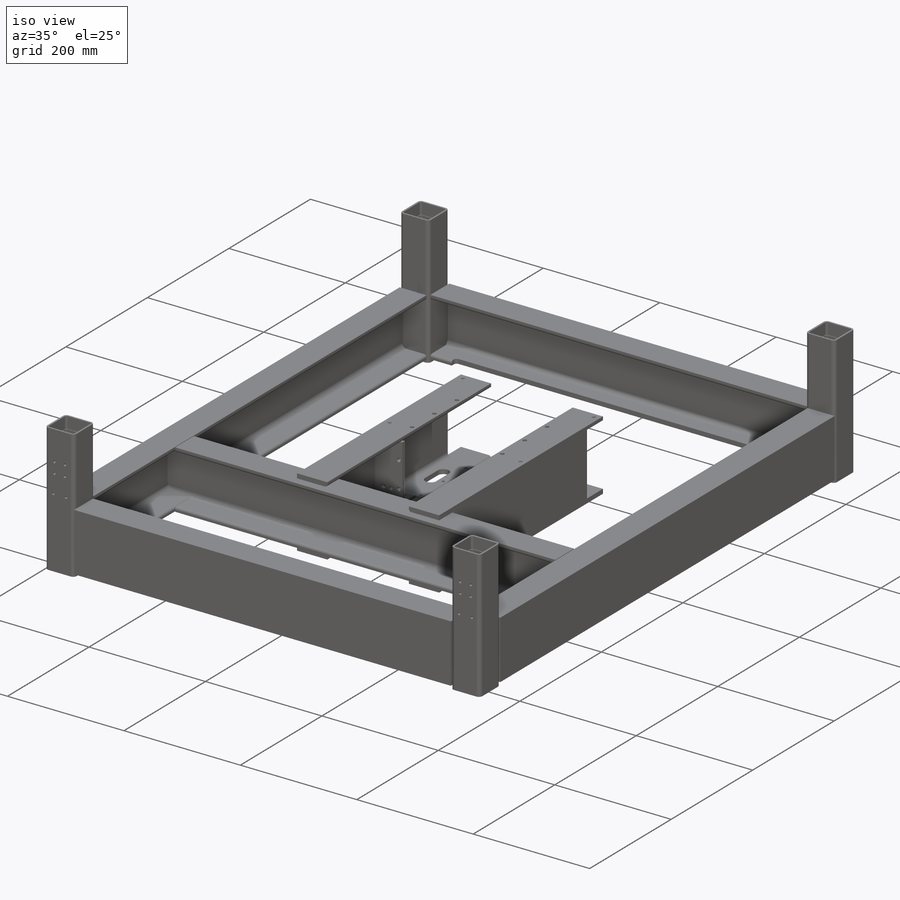
[diagram: iso view]
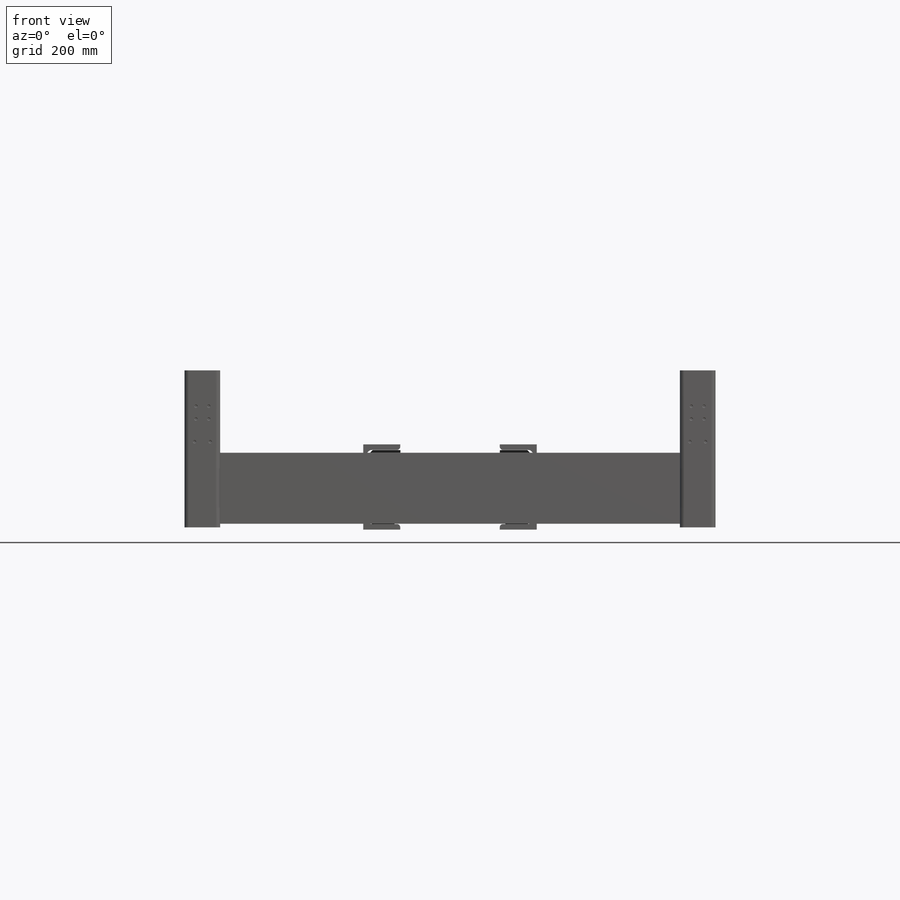
[diagram: front view]
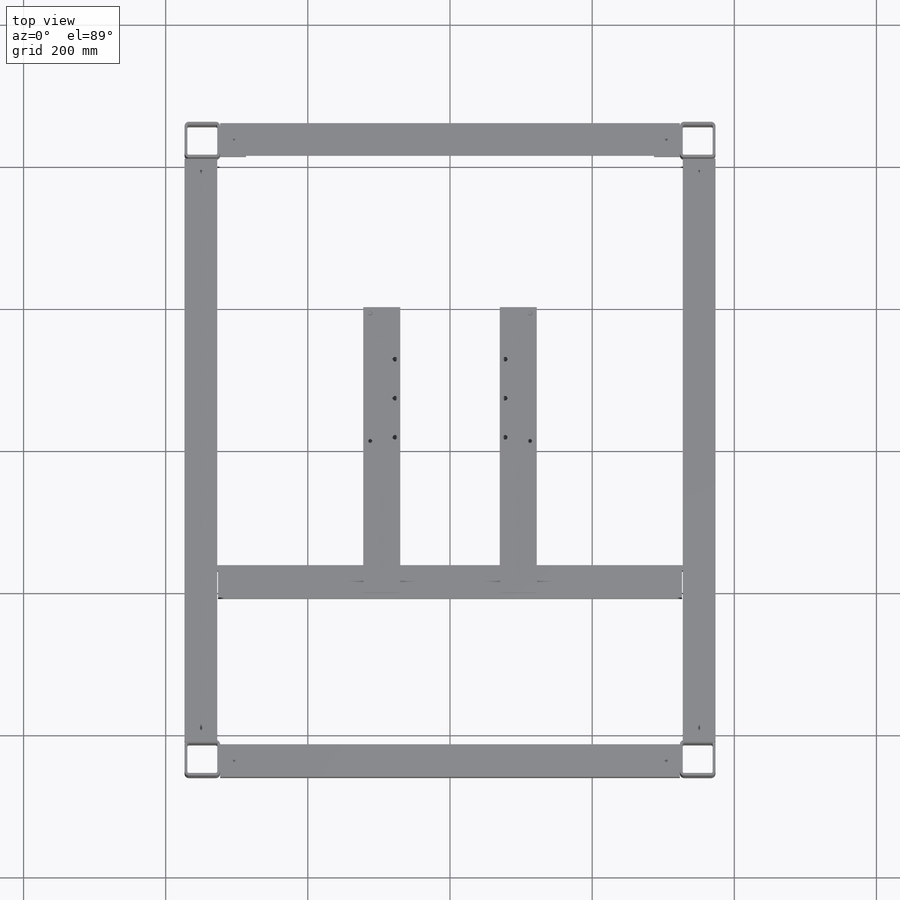
[diagram: top view]
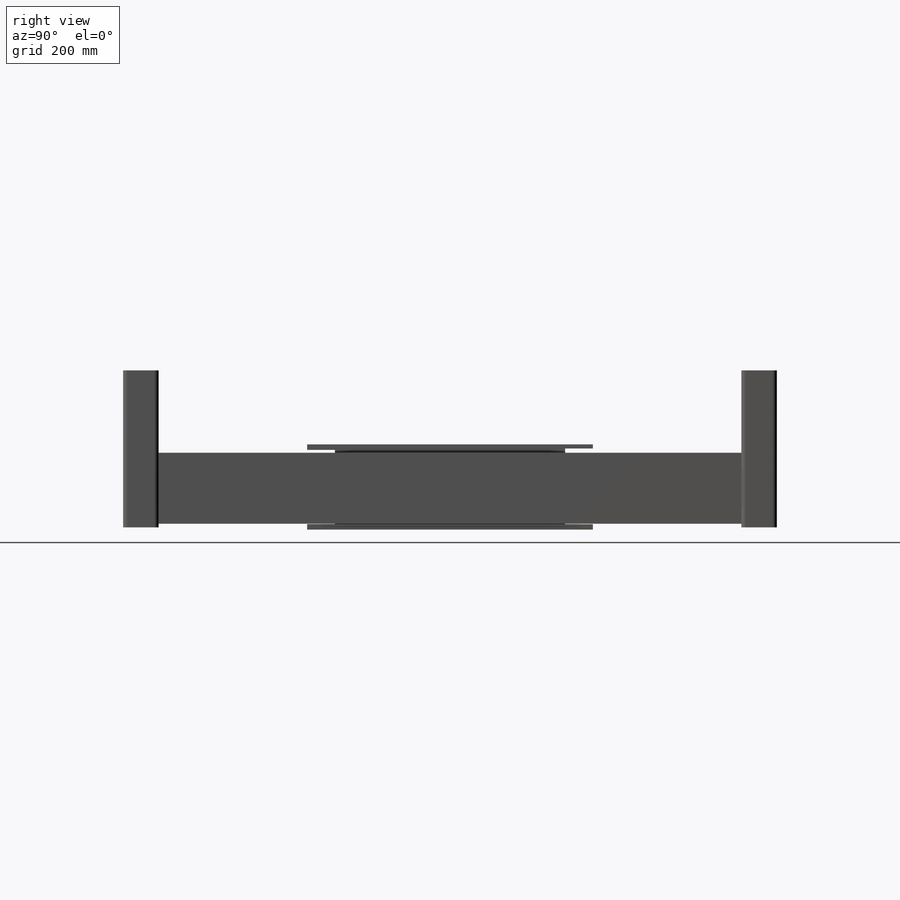
[diagram: right view]
SOLIDWORKS PART (.sldprt)
format: sldprt  version: not decoded by parser v0  size: 3,572,736 bytes
history: native  units: mm
features: sketch x56, thread x38, cut_extrude x14, extrude x7, hole x5, material x2, fillet x2, shell x2, plane x1, delete_body x1 + 33 further entries (+67 scaffold rows collapsed; 5 parser-record rows omitted)
feature tree (233):
  scaffold x67  (default folders/planes/origin — collapsed)
  material  " 09Г2С ГОСТ 4543-71"
  material  "Boundary Conditions Data"
  "Элемент списка вырезов2"
  "Элемент списка вырезов3"
  "Элемент списка вырезов4"
  "Аккумуляторы"
  "Элемент списка вырезов6"
  "Элемент списка вырезов7"
  "Балка правая"
  "Балка левая "
  "Равняющие площадки"
  "Элемент списка вырезов11"
  "Элемент списка вырезов12"
  plane  "Спереди"
  "Сверху"
  "Слева"
  "Начало координат"
  sketch  "Габарит"  dims[D1=750.0mm D2=1100.0mm]
  sketch  "Габарит2"  dims[c1.D1=320.0mm c1.D2=141.6mm c1.D3=~78.83304mm c1.D4=~78.83304mm c2.D3=9.5mm c2.D4=168.9mm c2.D5=90.0mm c2.D6=90.0mm c2.D7=920.0mm c2.D8=1.5mm c2.D9=1.5mm c2.D10=62.5mm c2.D11=105.0mm c2.D12=298.0mm c2.D13=298.0mm c2.D14=324.0mm c2.D15=251.5mm c2.D16=251.5mm c2.D17=244.0mm c2.D18=11.8mm]
  parser-record x5  (decoder bookkeeping rows leaked as tree rows — omitted from the tree; the rows remain in map.json)
  "Плоскость1"
  sketch  "Sketch113"  dims[c1.D1=6.35mm c1.D2=6.35mm c1.D3=6.35mm c1.D4=6.35mm c1.D5=6.35mm c1.D6=6.35mm c1.D7=6.35mm c1.D8=6.35mm c2.D1=6.604mm c2.D2=6.604mm c2.D3=6.604mm c2.D4=6.604mm c3.D1=6.0mm c3.Thickness=4.0mm c3.D4=12.9032mm c3.D5=12.9286mm c3.V_leg=50.0mm c3.H_leg=50.0mm c4.D4=50.3428mm c4.D5=50.8508mm c5.D4=~41.274964mm c5.D5=~41.274964mm]
  "Плоскость2"
  sketch  "Sketch1"  dims[c1.D1=6.35mm c1.D2=6.35mm c1.D3=6.35mm c1.D4=6.35mm c1.D5=6.35mm c1.D6=6.35mm c1.D7=6.35mm c1.D8=6.35mm c2.D1=6.604mm c2.D2=6.604mm c2.D3=6.604mm c2.D4=6.604mm c3.D1=6.0mm c3.Thickness=4.0mm c3.D4=12.9032mm c3.D5=12.9286mm c3.V_leg=50.0mm c3.H_leg=50.0mm c4.D4=50.3428mm c4.D5=50.8508mm c5.D4=~41.274964mm c5.D5=~41.274964mm]
  "Плоскость3"
  sketch  "Sketch114"  dims[c1.D1=6.35mm c1.D2=6.35mm c1.D3=6.35mm c1.D4=6.35mm c1.D5=6.35mm c1.D6=6.35mm c1.D7=6.35mm c1.D8=6.35mm c2.D1=6.604mm c2.D2=6.604mm c2.D3=6.604mm c2.D4=6.604mm c3.D1=6.0mm c3.Thickness=4.0mm c3.D4=12.9032mm c3.D5=12.9286mm c3.V_leg=50.0mm c3.H_leg=50.0mm c4.D4=50.3428mm c4.D5=50.8508mm c5.D4=~41.274964mm c5.D5=~41.274964mm]
  "Плоскость4"
  sketch  "Sketch115"  dims[c1.D1=6.35mm c1.D2=6.35mm c1.D3=6.35mm c1.D4=6.35mm c1.D5=6.35mm c1.D6=6.35mm c1.D7=6.35mm c1.D8=6.35mm c2.D1=6.604mm c2.D2=6.604mm c2.D3=6.604mm c2.D4=6.604mm c3.D1=6.0mm c3.Thickness=4.0mm c3.D4=12.9032mm c3.D5=12.9286mm c3.V_leg=50.0mm c3.H_leg=50.0mm c4.D4=50.3428mm c4.D5=50.8508mm c5.D4=~41.274964mm c5.D5=~41.274964mm]
  "Плоскость5"
  "Плоскость6"
  "Плоскость7"
  "Плоскость11"
  sketch  "Sketch116"  dims[c1.D2=3.175mm c1.R=7.0mm c1.Radius_2=3.175mm c1.r3=3.0mm c1.r1=1.0mm c1.r2=1.0mm c2.r3=1.0mm c2.D1=5.0mm c2._R=7.0mm c2.r=2.5mm c3.r=2.5mm c4.r=2.5mm c4._R=7.0mm c4.D3=2.8mm c4.D4=~5.87639mm c4.R=7.0mm c4._r=2.7mm c5._r=4.0mm c5.V_leg=50.8mm c5.H_leg=50.8mm c5.Thickness=3.175mm c5.S2=3.0mm c5.D3=46.0375mm c6.V_leg=25.4mm c6.H_leg=25.0mm c6.Flat_wid=~0.00508mm c6.D3=6.35mm c6.D2=0.005mm c7.D3=20.0mm c7.H=100.0mm c7.D5=~19.488932mm c7.D6=~5.434439mm c7.D1=2.5mm c7.b=25.0mm c7.Х0=6.7mm c7.S2=22.0mm c8.D1=22.0mm c8.D2=90.0deg c8.S=3.0mm c9.D1=25.0mm c9.b=22.0mm c9.b1=12.0mm c9.Y0=13.2mm c9.S=4.5mm c9.h=100.0mm c10.S=4.5mm c10.B=55.0mm c10.(b-s)/4=12.625mm c10.t=7.0mm c10.D1=19.7258mm c10.D2=~9.065506mm c11.D1=~21.709228mm c12.D1=~24.682381deg c13.D1=~8.916209mm c13.D2=~19.67494mm c14.D1=~19.626905mm c15.D1=10.0deg c15.B=55.0mm c15.(b-s)/4=12.625mm c16.D1=3.8mm c16.D2=~17.739829mm c17.D1=18.0mm c17.D2=12.0mm c17.D3=4.5mm c17.b=55.0mm c17.S=4.4mm c17.(b-S)/4=12.625mm c18.D1=~19.609084mm c18.b=55.0mm c18.(b-S)/2=13.8mm c18.D2=~1.176545mm c19.b=46.0mm c19.h=100.0mm c19.D3=2.2mm c19.D4=2.2mm c20.D3=2.2mm c20.D4=2.2mm c21.D3=2.2mm c21.S=4.5mm c21.Z0=15.3mm c21.t=7.6mm]
  "Плоскость12"
  sketch  "Sketch117"  dims[c1.D2=3.175mm c1.R=7.0mm c1.Radius_2=3.175mm c1.r3=3.0mm c1.r1=1.0mm c1.r2=1.0mm c2.r3=1.0mm c2.D1=5.0mm c2._R=7.0mm c2.r=2.5mm c3.r=2.5mm c4.r=2.5mm c4._R=7.0mm c4.D3=2.8mm c4.D4=~5.87639mm c4.R=7.0mm c4._r=2.7mm c5._r=4.0mm c5.V_leg=50.8mm c5.H_leg=50.8mm c5.Thickness=3.175mm c5.S2=3.0mm c5.D3=46.0375mm c6.V_leg=25.4mm c6.H_leg=25.0mm c6.Flat_wid=~0.00508mm c6.D3=6.35mm c6.D2=0.005mm c7.D3=20.0mm c7.H=100.0mm c7.D5=~19.488932mm c7.D6=~5.434439mm c7.D1=2.5mm c7.b=25.0mm c7.Х0=6.7mm c7.S2=22.0mm c8.D1=22.0mm c8.D2=90.0deg c8.S=3.0mm c9.D1=25.0mm c9.b=22.0mm c9.b1=12.0mm c9.Y0=13.2mm c9.S=4.5mm c9.h=100.0mm c10.S=4.5mm c10.B=55.0mm c10.(b-s)/4=12.625mm c10.t=7.0mm c10.D1=19.7258mm c10.D2=~9.065506mm c11.D1=~21.709228mm c12.D1=~24.682381deg c13.D1=~8.916209mm c13.D2=~19.67494mm c14.D1=~19.626905mm c15.D1=10.0deg c15.B=55.0mm c15.(b-s)/4=12.625mm c16.D1=3.8mm c16.D2=~17.739829mm c17.D1=18.0mm c17.D2=12.0mm c17.D3=4.5mm c17.b=55.0mm c17.S=4.4mm c17.(b-S)/4=12.625mm c18.D1=~19.609084mm c18.b=55.0mm c18.(b-S)/2=13.8mm c18.D2=~1.176545mm c19.b=46.0mm c19.h=100.0mm c19.D3=2.2mm c19.D4=2.2mm c20.D3=2.2mm c20.D4=2.2mm c21.D3=2.2mm c21.S=4.5mm c21.Z0=15.3mm c21.t=7.6mm]
  "Плоскость13"
  sketch  "Sketch118"  dims[c1.D2=3.175mm c1.R=7.0mm c1.Radius_2=3.175mm c1.r3=3.0mm c1.r1=1.0mm c1.r2=1.0mm c2.r3=1.0mm c2.D1=5.0mm c2._R=7.0mm c2.r=2.5mm c3.r=2.5mm c4.r=2.5mm c4._R=7.0mm c4.D3=2.8mm c4.D4=~5.87639mm c4.R=7.0mm c4._r=2.7mm c5._r=4.0mm c5.V_leg=50.8mm c5.H_leg=50.8mm c5.Thickness=3.175mm c5.S2=3.0mm c5.D3=46.0375mm c6.V_leg=25.4mm c6.H_leg=25.0mm c6.Flat_wid=~0.00508mm c6.D3=6.35mm c6.D2=0.005mm c7.D3=20.0mm c7.H=100.0mm c7.D5=~19.488932mm c7.D6=~5.434439mm c7.D1=2.5mm c7.b=25.0mm c7.Х0=6.7mm c7.S2=22.0mm c8.D1=22.0mm c8.D2=90.0deg c8.S=3.0mm c9.D1=25.0mm c9.b=22.0mm c9.b1=12.0mm c9.Y0=13.2mm c9.S=4.5mm c9.h=100.0mm c10.S=4.5mm c10.B=55.0mm c10.(b-s)/4=12.625mm c10.t=7.0mm c10.D1=19.7258mm c10.D2=~9.065506mm c11.D1=~21.709228mm c12.D1=~24.682381deg c13.D1=~8.916209mm c13.D2=~19.67494mm c14.D1=~19.626905mm c15.D1=10.0deg c15.B=55.0mm c15.(b-s)/4=12.625mm c16.D1=3.8mm c16.D2=~17.739829mm c17.D1=18.0mm c17.D2=12.0mm c17.D3=4.5mm c17.b=55.0mm c17.S=4.4mm c17.(b-S)/4=12.625mm c18.D1=~19.609084mm c18.b=55.0mm c18.(b-S)/2=13.8mm c18.D2=~1.176545mm c19.b=46.0mm c19.h=100.0mm c19.D3=2.2mm c19.D4=2.2mm c20.D3=2.2mm c20.D4=2.2mm c21.D3=2.2mm c21.S=4.5mm c21.Z0=15.3mm c21.t=7.6mm]
  "Плоскость14"
  sketch  "Sketch119"  dims[c1.D2=3.175mm c1.R=7.0mm c1.Radius_2=3.175mm c1.r3=3.0mm c1.r1=1.0mm c1.r2=1.0mm c2.r3=1.0mm c2.D1=5.0mm c2._R=7.0mm c2.r=2.5mm c3.r=2.5mm c4.r=2.5mm c4._R=7.0mm c4.D3=2.8mm c4.D4=~5.87639mm c4.R=7.0mm c4._r=2.7mm c5._r=4.0mm c5.V_leg=50.8mm c5.H_leg=50.8mm c5.Thickness=3.175mm c5.S2=3.0mm c5.D3=46.0375mm c6.V_leg=25.4mm c6.H_leg=25.0mm c6.Flat_wid=~0.00508mm c6.D3=6.35mm c6.D2=0.005mm c7.D3=20.0mm c7.H=100.0mm c7.D5=~19.488932mm c7.D6=~5.434439mm c7.D1=2.5mm c7.b=25.0mm c7.Х0=6.7mm c7.S2=22.0mm c8.D1=22.0mm c8.D2=90.0deg c8.S=3.0mm c9.D1=25.0mm c9.b=22.0mm c9.b1=12.0mm c9.Y0=13.2mm c9.S=4.5mm c9.h=100.0mm c10.S=4.5mm c10.B=55.0mm c10.(b-s)/4=12.625mm c10.t=7.0mm c10.D1=19.7258mm c10.D2=~9.065506mm c11.D1=~21.709228mm c12.D1=~24.682381deg c13.D1=~8.916209mm c13.D2=~19.67494mm c14.D1=~19.626905mm c15.D1=10.0deg c15.B=55.0mm c15.(b-s)/4=12.625mm c16.D1=3.8mm c16.D2=~17.739829mm c17.D1=18.0mm c17.D2=12.0mm c17.D3=4.5mm c17.b=55.0mm c17.S=4.4mm c17.(b-S)/4=12.625mm c18.D1=~19.609084mm c18.b=55.0mm c18.(b-S)/2=13.8mm c18.D2=~1.176545mm c19.b=46.0mm c19.h=100.0mm c19.D3=2.2mm c19.D4=2.2mm c20.D3=2.2mm c20.D4=2.2mm c21.D3=2.2mm c21.S=4.5mm c21.Z0=15.3mm c21.t=7.6mm]
  "Плоскость15"
  sketch  "Sketch120"  dims[c1.D2=3.175mm c1.R=7.0mm c1.Radius_2=3.175mm c1.r3=3.0mm c1.r1=1.0mm c1.r2=1.0mm c2.r3=1.0mm c2.D1=5.0mm c2._R=7.0mm c2.r=2.5mm c3.r=2.5mm c4.r=2.5mm c4._R=7.0mm c4.D3=2.8mm c4.D4=~5.87639mm c4.R=7.0mm c4._r=2.7mm c5._r=4.0mm c5.V_leg=50.8mm c5.H_leg=50.8mm c5.Thickness=3.175mm c5.S2=3.0mm c5.D3=46.0375mm c6.V_leg=25.4mm c6.H_leg=25.0mm c6.Flat_wid=~0.00508mm c6.D3=6.35mm c6.D2=0.005mm c7.D3=20.0mm c7.H=100.0mm c7.D5=~19.488932mm c7.D6=~5.434439mm c7.D1=2.5mm c7.b=25.0mm c7.Х0=6.7mm c7.S2=22.0mm c8.D1=22.0mm c8.D2=90.0deg c8.S=3.0mm c9.D1=25.0mm c9.b=22.0mm c9.b1=12.0mm c9.Y0=13.2mm c9.S=4.5mm c9.h=100.0mm c10.S=4.5mm c10.B=55.0mm c10.(b-s)/4=12.625mm c10.t=7.0mm c10.D1=19.7258mm c10.D2=~9.065506mm c11.D1=~21.709228mm c12.D1=~24.682381deg c13.D1=~8.916209mm c13.D2=~19.67494mm c14.D1=~19.626905mm c15.D1=10.0deg c15.B=55.0mm c15.(b-s)/4=12.625mm c16.D1=3.8mm c16.D2=~17.739829mm c17.D1=18.0mm c17.D2=12.0mm c17.D3=4.5mm c17.b=55.0mm c17.S=4.4mm c17.(b-S)/4=12.625mm c18.D1=~19.609084mm c18.b=55.0mm c18.(b-S)/2=13.8mm c18.D2=~1.176545mm c19.b=46.0mm c19.h=100.0mm c19.D3=2.2mm c19.D4=2.2mm c20.D3=2.2mm c20.D4=2.2mm c21.D3=2.2mm c21.S=4.5mm c21.Z0=15.3mm c21.t=7.6mm]
  "Плоскость16"
  sketch  "Sketch121"  dims[c1.D2=3.175mm c1.R=7.0mm c1.Radius_2=3.175mm c1.r3=3.0mm c1.r1=1.0mm c1.r2=1.0mm c2.r3=1.0mm c2.D1=5.0mm c2._R=7.0mm c2.r=2.5mm c3.r=2.5mm c4.r=2.5mm c4._R=7.0mm c4.D3=2.8mm c4.D4=~5.87639mm c4.R=7.0mm c4._r=2.7mm c5._r=4.0mm c5.V_leg=50.8mm c5.H_leg=50.8mm c5.Thickness=3.175mm c5.S2=3.0mm c5.D3=46.0375mm c6.V_leg=25.4mm c6.H_leg=25.0mm c6.Flat_wid=~0.00508mm c6.D3=6.35mm c6.D2=0.005mm c7.D3=20.0mm c7.H=100.0mm c7.D5=~19.488932mm c7.D6=~5.434439mm c7.D1=2.5mm c7.b=25.0mm c7.Х0=6.7mm c7.S2=22.0mm c8.D1=22.0mm c8.D2=90.0deg c8.S=3.0mm c9.D1=25.0mm c9.b=22.0mm c9.b1=12.0mm c9.Y0=13.2mm c9.S=4.5mm c9.h=100.0mm c10.S=4.5mm c10.B=55.0mm c10.(b-s)/4=12.625mm c10.t=7.0mm c10.D1=19.7258mm c10.D2=~9.065506mm c11.D1=~21.709228mm c12.D1=~24.682381deg c13.D1=~8.916209mm c13.D2=~19.67494mm c14.D1=~19.626905mm c15.D1=10.0deg c15.B=55.0mm c15.(b-s)/4=12.625mm c16.D1=3.8mm c16.D2=~17.739829mm c17.D1=18.0mm c17.D2=12.0mm c17.D3=4.5mm c17.b=55.0mm c17.S=4.4mm c17.(b-S)/4=12.625mm c18.D1=~19.609084mm c18.b=55.0mm c18.(b-S)/2=13.8mm c18.D2=~1.176545mm c19.b=46.0mm c19.h=100.0mm c19.D3=2.2mm c19.D4=2.2mm c20.D3=2.2mm c20.D4=2.2mm c21.D3=2.2mm c21.S=4.5mm c21.Z0=15.3mm c21.t=7.6mm]
  "Плоскость17"
  sketch  "Sketch122"  dims[c1.D2=3.175mm c1.R=9.0mm c1.Radius_2=3.175mm c1.r3=3.0mm c1.r1=1.0mm c1.r2=1.0mm c2.r3=1.0mm c2.V_leg=50.8mm c2.H_leg=50.8mm c2.Thickness=3.175mm c2.S2=3.0mm c2.D3=46.0375mm c3.V_leg=25.4mm c3.H_leg=25.0mm c3.Flat_wid=~0.00508mm c3.D3=6.35mm c3.D2=0.005mm c4.D3=20.0mm c4.H=108.0mm c4.D5=~19.488932mm c4.D6=~5.434439mm c4.D1=2.5mm c4.b=70.0mm c4.Х0=22.9mm c4.S2=22.0mm c5.D1=22.0mm c5.D2=90.0deg c5.S=6.0mm]
  "Плоскость18"
  sketch  "Sketch123"  dims[c1.D2=3.175mm c1.R=9.0mm c1.Radius_2=3.175mm c1.r3=3.0mm c1.r1=1.0mm c1.r2=1.0mm c2.r3=1.0mm c2.V_leg=50.8mm c2.H_leg=50.8mm c2.Thickness=3.175mm c2.S2=3.0mm c2.D3=46.0375mm c3.V_leg=25.4mm c3.H_leg=25.0mm c3.Flat_wid=~0.00508mm c3.D3=6.35mm c3.D2=0.005mm c4.D3=20.0mm c4.H=108.0mm c4.D5=~19.488932mm c4.D6=~5.434439mm c4.D1=2.5mm c4.b=70.0mm c4.Х0=22.9mm c4.S2=22.0mm c5.D1=22.0mm c5.D2=90.0deg c5.S=3.0mm c5.S-2=6.0mm]
  sketch  "Эскиз21"  dims[D1=200.0mm D2=200.0mm]
  cut_extrude  "Вытянуть6"  [1 undecoded]
  sketch  "Эскиз10"  dims[c1.D1=1.0mm c1.D2=1.0mm c2.D1=1.0mm]
  cut_extrude  "Вытянуть1"  Depth=1mm
  sketch  "Эскиз11"  dims[D1=0.0mm D2=0.0mm D3=0.0mm D4=0.0mm]
  cut_extrude  "Вытянуть2"  Depth=1mm
  sketch  "Эскиз13"  dims[c1.D1=~22.966545mm c2.D1=45.0deg c2.D2=10.0mm]
  cut_extrude  "Вытянуть3"  [1 undecoded]
  sketch  "Эскиз приводного колеса"  dims[c1.D1=607.0mm c2.D1=40.0deg c2.D2=5.0mm c2.D3=60.0mm c2.D4=250.0mm c2.D5=5.0mm c2.D6=~281.076952mm c2.D7=35.0mm c2.D8=~63.480762mm c2.D9=182.0mm c2.D10=107.0mm c2.D11=~139.747515mm c2.D12=~12.691688mm c2.D13=820.0mm c3.D13=30.0deg c3.D2=5.0mm c3.D12=~14.691688mm c4.D13=800.0mm c5.D13=30.0deg c5.D7=37.0mm]
  delete_body  "Тело-Удалить1"
  sketch  "Эскиз14"  dims[c1.D5=5.0mm c1.D1=~113.48977mm c2.D1=45.0deg c2.D2=217.5mm c3.D1=25.0mm c3.D3=212.0mm c3.D4=212.0mm c4.D1=25.0mm]
  cut_extrude  "Вытянуть4"  [1 undecoded]
  sketch  "Эскиз22"  dims[c1.D1=~50.341959mm c2.D1=45.0deg c2.D2=8.0mm c2.D3=0.5mm c2.D4=0.5mm c2.D5=0.5mm c2.D6=8.0mm c2.D7=0.5mm]
  extrude  "Вытянуть7"  Depth=6mm
  extrude  "Вытянуть8"  [1 undecoded]
  sketch  "Эскиз22<2>"  dims[D1=6.0mm]
  sketch  "Эскиз15"  dims[D1=36.5mm D2=10.0mm]
  cut_extrude  "Вытянуть5"  [1 undecoded]
  fillet  "Скругление1"  Radius=5mm
  fillet  "Скругление2"  Radius=5mm
  sketch  "Эскиз16"  dims[D1=3.0mm D2=3.0mm D3=3.0mm D4=3.0mm]
  cut_extrude  "Вырез под линейные направляющие"  Depth=20mm
  sketch  "Эскиз17"  dims[D1=3.0mm D2=4.0mm D4=2.5mm D6=5.5mm D3=0.5mm D5=1.5mm]
  sketch  "Эскиз18"  dims[D1=350.0mm D2=240.0mm D3=2.5mm D4=2.5mm]
  extrude  "Аккумуляторы тяговые"  Depth=145mm
  shell  "Оболочка1"  Thickness=12mm
  shell  "Оболочка2"  Thickness=12mm
  "Плоскость19"
  sketch  "Sketch124"  dims[c1.D2=3.175mm c1.R=7.0mm c1.Radius_2=3.175mm c1.r3=3.0mm c1.r1=1.0mm c1.r2=1.0mm c2.r3=1.0mm c2.D1=5.0mm c2._R=7.0mm c2.r=2.5mm c3.r=2.5mm c4.r=2.5mm c4._R=7.0mm c4.D3=2.8mm c4.D4=~5.87639mm c4.R=7.5mm c4._r=2.7mm c5._r=4.5mm c5.V_leg=50.8mm c5.H_leg=50.8mm c5.Thickness=3.175mm c5.S2=3.0mm c5.D3=46.0375mm c6.V_leg=25.4mm c6.H_leg=25.0mm c6.Flat_wid=~0.00508mm c6.D3=6.35mm c6.D2=0.005mm c7.D3=20.0mm c7.H=100.0mm c7.D5=~19.488932mm c7.D6=~5.434439mm c7.D1=2.5mm c7.b=25.0mm c7.Х0=6.7mm c7.S2=22.0mm c8.D1=22.0mm c8.D2=90.0deg c8.S=3.0mm c9.D1=25.0mm c9.b=22.0mm c9.b1=12.0mm c9.Y0=13.2mm c9.S=4.5mm c9.h=100.0mm c10.S=4.5mm c10.B=55.0mm c10.(b-s)/4=12.625mm c10.t=7.0mm c10.D1=19.7258mm c10.D2=~9.065506mm c11.D1=~21.709228mm c12.D1=~24.682381deg c13.D1=~8.916209mm c13.D2=~19.67494mm c14.D1=~19.626905mm c15.D1=10.0deg c15.B=55.0mm c15.(b-s)/4=12.625mm c16.D1=3.8mm c16.D2=~17.739829mm c17.D1=18.0mm c17.D2=12.0mm c17.D3=4.5mm c17.b=55.0mm c17.S=4.4mm c17.(b-S)/4=12.625mm c18.D1=~19.609084mm c18.b=55.0mm c18.(b-S)/2=13.8mm c18.D2=~1.176545mm c19.b=52.0mm c19.h=120.0mm c19.D3=2.2mm c19.D4=2.2mm c20.D3=2.2mm c20.D4=2.2mm c21.D3=2.2mm c21.S=4.8mm c21.Z0=16.6mm c21.t=7.8mm]
  "Плоскость20"
  sketch  "Sketch125"  dims[c1.D2=3.175mm c1.R=7.0mm c1.Radius_2=3.175mm c1.r3=3.0mm c1.r1=1.0mm c1.r2=1.0mm c2.r3=1.0mm c2.D1=5.0mm c2._R=7.0mm c2.r=2.5mm c3.r=2.5mm c4.r=2.5mm c4._R=7.0mm c4.D3=2.8mm c4.D4=~5.87639mm c4.R=7.5mm c4._r=2.7mm c5._r=4.5mm c5.V_leg=50.8mm c5.H_leg=50.8mm c5.Thickness=3.175mm c5.S2=3.0mm c5.D3=46.0375mm c6.V_leg=25.4mm c6.H_leg=25.0mm c6.Flat_wid=~0.00508mm c6.D3=6.35mm c6.D2=0.005mm c7.D3=20.0mm c7.H=100.0mm c7.D5=~19.488932mm c7.D6=~5.434439mm c7.D1=2.5mm c7.b=25.0mm c7.Х0=6.7mm c7.S2=22.0mm c8.D1=22.0mm c8.D2=90.0deg c8.S=3.0mm c9.D1=25.0mm c9.b=22.0mm c9.b1=12.0mm c9.Y0=13.2mm c9.S=4.5mm c9.h=100.0mm c10.S=4.5mm c10.B=55.0mm c10.(b-s)/4=12.625mm c10.t=7.0mm c10.D1=19.7258mm c10.D2=~9.065506mm c11.D1=~21.709228mm c12.D1=~24.682381deg c13.D1=~8.916209mm c13.D2=~19.67494mm c14.D1=~19.626905mm c15.D1=10.0deg c15.B=55.0mm c15.(b-s)/4=12.625mm c16.D1=3.8mm c16.D2=~17.739829mm c17.D1=18.0mm c17.D2=12.0mm c17.D3=4.5mm c17.b=55.0mm c17.S=4.4mm c17.(b-S)/4=12.625mm c18.D1=~19.609084mm c18.b=55.0mm c18.(b-S)/2=13.8mm c18.D2=~1.176545mm c19.b=52.0mm c19.h=120.0mm c19.D3=2.2mm c19.D4=2.2mm c20.D3=2.2mm c20.D4=2.2mm c21.D3=2.2mm c21.S=4.8mm c21.Z0=16.6mm c21.t=7.8mm]
  sketch  "Эскиз25"  dims[D1=0.0mm D2=0.0mm]
  extrude  "Вытянуть9"  Depth=7mm
  sketch  "Эскиз26"  dims[c1.D1=0.0mm c1.D2=0.0mm c2.D1=0.0mm c2.D2=0.0mm c2.D3=0.0mm c2.D4=0.0mm]
  extrude  "Вытянуть10"  Depth=39mm
  sketch  "Эскиз27"
  cut_extrude  "Вытянуть11"  Depth=2mm
  sketch  "Эскиз28"  dims[D1=0.0mm]
  cut_extrude  "Вытянуть12"  Depth=0.2mm
  sketch  "Эскиз29"  dims[D3=13.0mm D1=176.0mm D2=24.0mm]
  cut_extrude  "Вытянуть13"  [1 undecoded]
  sketch  "Эскиз30"  dims[D1=32.0mm]
  sketch  "Эскиз32"  dims[D1=3.0mm]
  cut_extrude  "Вытянуть14"  Depth=0.7mm
  sketch  "Эскиз33"  dims[D3=3.0mm D4=3.0mm D5=3.0mm D6=3.0mm D7=3.0mm D8=3.0mm D9=3.0mm D10=3.0mm]
  extrude  "Вытянуть15"  Depth=4mm
  hole  "Зенковка для винта с потайной головкой M121"  [1 undecoded]
  sketch  "Трехмерный эскиз1"
  sketch  "Эскиз34"  dims[hole-wizard template sketch: 54 standard entries collapsed; hole parameters kept: c17.Диаметр сквозного отверстия=13.0mm c17.Глубина сквозного отверстия=120.0mm c17.Диаметр передней зенковки=24.4mm c17.D4=~3.666174mm c17.Угол передней зенковки=90.0deg]
  sketch  "Эскиз35"  dims[c1.D4=9.5mm c1.D1=88.5mm c1.D2=~55.790919mm c2.D2=90.0deg c3.D2=31.0mm c3.D3=19.0mm c3.D4=50.0mm]
  cut_extrude  "Вытянуть16"  [1 undecoded]
  sketch  "Эскиз36"  dims[D11=8.0mm D1=8.0mm D2=103.0mm]
  extrude  "Вытянуть17"  Depth=6mm
  hole  "Отверстие обработанное метчиком M6x1.01"  [1 undecoded]
  sketch  "Эскиз38"  dims[D1=45.0mm D2=6.0mm D3=6.0mm]
  sketch  "Эскиз37"  dims[hole-wizard template sketch: 55 standard entries collapsed; hole parameters kept: c17.Глубина проходного сверла=155.5mm c17.Диаметр задней зенковки=6.5mm c17.D4=~2.963249mm c17.Угол задней зенковки=90.0deg]
  thread  "Отверстие резьбы1"  Diameter=6mm  [1 undecoded]
  thread  "Отверстие резьбы2"  Diameter=6mm  [1 undecoded]
  thread  "Отверстие резьбы3"  Diameter=6mm  [1 undecoded]
  thread  "Отверстие резьбы4"  Diameter=6mm  [1 undecoded]
  sketch  "Эскиз39"  dims[D5=6.5mm D1=7.5mm D2=309.0mm D3=19.5mm D4=110.0mm]
  cut_extrude  "Вытянуть18"  [1 undecoded]
  hole  "Отверстие обработанное метчиком M6x1.02"  [1 undecoded]
  sketch  "Эскиз41"  dims[D1=6.0mm D2=15.0mm D3=110.0mm D4=309.0mm]
  thread  "Отверстие резьбы5"  Diameter=6mm  [1 undecoded]
  thread  "Отверстие резьбы6"  Diameter=6mm  [1 undecoded]
  thread  "Отверстие резьбы7"  Diameter=6mm  [1 undecoded]
  thread  "Отверстие резьбы8"  Diameter=6mm  [1 undecoded]
  sketch  "Эскиз40"  dims[hole-wizard template sketch: 55 standard entries collapsed; hole parameters kept: c17.Глубина проходного сверла=120.0mm c17.Диаметр передней зенковки=6.5mm c17.D4=~3.666174mm c17.Угол передней зенковки=90.0deg]
  thread  "Отверстие резьбы11"  Diameter=6mm  [1 undecoded]
  thread  "Отверстие резьбы12"  Diameter=6mm  [1 undecoded]
  sketch  "Эскиз42"  dims[D1=18.0mm D2=9.0mm D3=14.0mm D4=37.0mm D5=101.5mm D6=9.0mm D7=11.0mm]
  sketch  "Эскиз43"
  hole  "Отверстие обработанное метчиком M4x0.71"  [1 undecoded]
  sketch  "Трехмерный эскиз2"
  sketch  "Эскиз44"  dims[hole-wizard template sketch: 54 standard entries collapsed; hole parameters kept: c17.Диаметр проходного сверла=3.3mm c17.Глубина проходного сверла=4.0mm c17.Диаметр передней зенковки=4.5mm c17.D4=~3.666174mm c17.Угол передней зенковки=90.0deg]
  thread  "Отверстие резьбы13"  Diameter=4mm  [1 undecoded]
  thread  "Отверстие резьбы14"  Diameter=4mm  [1 undecoded]
  thread  "Отверстие резьбы15"  Diameter=4mm  [1 undecoded]
  thread  "Отверстие резьбы16"  Diameter=4mm  [1 undecoded]
  thread  "Отверстие резьбы17"  Diameter=4mm  [1 undecoded]
  thread  "Отверстие резьбы18"  Diameter=4mm  [1 undecoded]
  thread  "Отверстие резьбы19"  Diameter=4mm  [1 undecoded]
  thread  "Отверстие резьбы20"  Diameter=4mm  [1 undecoded]
  thread  "Отверстие резьбы21"  Diameter=4mm  [1 undecoded]
  thread  "Отверстие резьбы22"  Diameter=4mm  [1 undecoded]
  thread  "Отверстие резьбы23"  Diameter=4mm  [1 undecoded]
  thread  "Отверстие резьбы24"  Diameter=4mm  [1 undecoded]
  thread  "Отверстие резьбы25"  Diameter=4mm  [1 undecoded]
  thread  "Отверстие резьбы26"  Diameter=4mm  [1 undecoded]
  thread  "Отверстие резьбы27"  Diameter=4mm  [1 undecoded]
  thread  "Отверстие резьбы28"  Diameter=4mm  [1 undecoded]
  thread  "Отверстие резьбы29"  Diameter=4mm  [1 undecoded]
  thread  "Отверстие резьбы30"  Diameter=4mm  [1 undecoded]
  thread  "Отверстие резьбы31"  Diameter=4mm  [1 undecoded]
  thread  "Отверстие резьбы32"  Diameter=4mm  [1 undecoded]
  thread  "Отверстие резьбы33"  Diameter=4mm  [1 undecoded]
  thread  "Отверстие резьбы34"  Diameter=4mm  [1 undecoded]
  thread  "Отверстие резьбы35"  Diameter=4mm  [1 undecoded]
  thread  "Отверстие резьбы36"  Diameter=4mm  [1 undecoded]
  sketch  "Трехмерный эскиз3"  dims[D1=357.5mm D2=100.0mm D3=5.0mm D4=165.0mm]
  "Плоскость21"
  sketch  "Sketch126"  dims[c1.D2=3.175mm c1.R=7.0mm c1.Radius_2=3.175mm c1.r3=3.0mm c1.r1=1.0mm c1.r2=1.0mm c2.r3=1.0mm c2.D1=5.0mm c2._R=7.0mm c2.r=2.5mm c3.r=2.5mm c4.r=2.5mm c4._R=7.0mm c4.D3=2.8mm c4.D4=~5.87639mm c4.R=7.0mm c4._r=2.7mm c5._r=4.0mm c5.V_leg=50.8mm c5.H_leg=50.8mm c5.Thickness=3.175mm c5.S2=3.0mm c5.D3=46.0375mm c6.V_leg=25.4mm c6.H_leg=25.0mm c6.Flat_wid=~0.00508mm c6.D3=6.35mm c6.D2=0.005mm c7.D3=20.0mm c7.H=100.0mm c7.D5=~19.488932mm c7.D6=~5.434439mm c7.D1=2.5mm c7.b=25.0mm c7.Х0=6.7mm c7.S2=22.0mm c8.D1=22.0mm c8.D2=90.0deg c8.S=3.0mm c9.D1=25.0mm c9.b=22.0mm c9.b1=12.0mm c9.Y0=13.2mm c9.S=4.5mm c9.h=100.0mm c10.S=4.5mm c10.B=55.0mm c10.(b-s)/4=12.625mm c10.t=7.0mm c10.D1=19.7258mm c10.D2=~9.065506mm c11.D1=~21.709228mm c12.D1=~24.682381deg c13.D1=~8.916209mm c13.D2=~19.67494mm c14.D1=~19.626905mm c15.D1=10.0deg c15.B=55.0mm c15.(b-s)/4=12.625mm c16.D1=3.8mm c16.D2=~17.739829mm c17.D1=18.0mm c17.D2=12.0mm c17.D3=4.5mm c17.b=55.0mm c17.S=4.4mm c17.(b-S)/4=12.625mm c18.D1=~19.609084mm c18.b=55.0mm c18.(b-S)/2=13.8mm c18.D2=~1.176545mm c19.b=46.0mm c19.h=100.0mm c19.D3=2.2mm c19.D4=2.2mm c20.D3=2.2mm c20.D4=2.2mm c21.D3=2.2mm c21.S=4.5mm c21.Z0=15.3mm c21.t=7.6mm]
  "Плоскость22"
  sketch  "Sketch127"  dims[c1.D2=3.175mm c1.R=7.0mm c1.Radius_2=3.175mm c1.r3=3.0mm c1.r1=1.0mm c1.r2=1.0mm c2.r3=1.0mm c2.D1=5.0mm c2._R=7.0mm c2.r=2.5mm c3.r=2.5mm c4.r=2.5mm c4._R=7.0mm c4.D3=2.8mm c4.D4=~5.87639mm c4.R=7.0mm c4._r=2.7mm c5._r=4.0mm c5.V_leg=50.8mm c5.H_leg=50.8mm c5.Thickness=3.175mm c5.S2=3.0mm c5.D3=46.0375mm c6.V_leg=25.4mm c6.H_leg=25.0mm c6.Flat_wid=~0.00508mm c6.D3=6.35mm c6.D2=0.005mm c7.D3=20.0mm c7.H=100.0mm c7.D5=~19.488932mm c7.D6=~5.434439mm c7.D1=2.5mm c7.b=25.0mm c7.Х0=6.7mm c7.S2=22.0mm c8.D1=22.0mm c8.D2=90.0deg c8.S=3.0mm c9.D1=25.0mm c9.b=22.0mm c9.b1=12.0mm c9.Y0=13.2mm c9.S=4.5mm c9.h=100.0mm c10.S=4.5mm c10.B=55.0mm c10.(b-s)/4=12.625mm c10.t=7.0mm c10.D1=19.7258mm c10.D2=~9.065506mm c11.D1=~21.709228mm c12.D1=~24.682381deg c13.D1=~8.916209mm c13.D2=~19.67494mm c14.D1=~19.626905mm c15.D1=10.0deg c15.B=55.0mm c15.(b-s)/4=12.625mm c16.D1=3.8mm c16.D2=~17.739829mm c17.D1=18.0mm c17.D2=12.0mm c17.D3=4.5mm c17.b=55.0mm c17.S=4.4mm c17.(b-S)/4=12.625mm c18.D1=~19.609084mm c18.b=55.0mm c18.(b-S)/2=13.8mm c18.D2=~1.176545mm c19.b=46.0mm c19.h=100.0mm c19.D3=2.2mm c19.D4=2.2mm c20.D3=2.2mm c20.D4=2.2mm c21.D3=2.2mm c21.S=4.5mm c21.Z0=15.3mm c21.t=7.6mm]
  sketch  "Эскиз45"  dims[D1=122.0mm D2=98.5mm D3=180.0mm D4=225.0mm]
  hole  "Отверстие обработанное метчиком M6x1.03"  [1 undecoded]
  sketch  "Эскиз47"
  sketch  "Эскиз46"  dims[hole-wizard template sketch: 55 standard entries collapsed; hole parameters kept: c17.Глубина проходного сверла=120.0mm c17.Диаметр передней зенковки=6.5mm c17.D4=~3.666174mm c17.Угол передней зенковки=90.0deg]
  thread  "Отверстие резьбы37"  Diameter=6mm  [1 undecoded]
  thread  "Отверстие резьбы38"  Diameter=6mm  [1 undecoded]
  thread  "Отверстие резьбы39"  Diameter=6mm  [1 undecoded]
  thread  "Отверстие резьбы40"  Diameter=6mm  [1 undecoded]
  sketch  "Эскиз48"  dims[D8=6.0mm D9=7.0mm D1=8.0mm D2=26.0mm D3=13.2mm D4=3.5mm D5=30.0mm D6=6.5mm D7=7.0mm]
  cut_extrude  "Вытянуть19"  [1 undecoded]
decode coverage: 105 of 125 modeling features carry decoded parameters; 33 rows unclassified (native names shown)
note: ~ marks probable driven/reference dimensions
note: 52 parameter values undecoded
summary: no parameter record found for 14 features
note: suppression state not decoded; provenance and decode notes live in map.json
